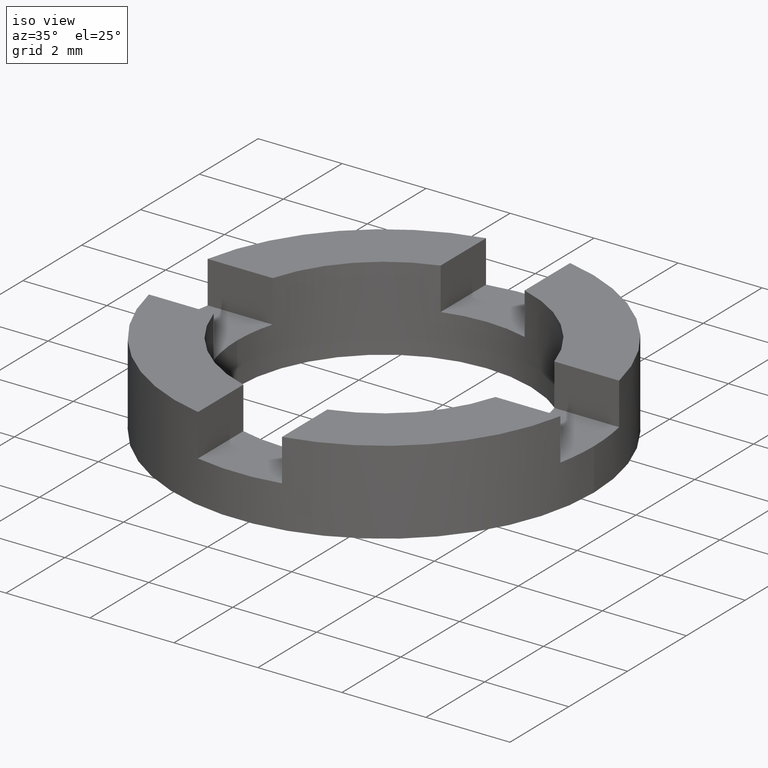
[diagram: clean part render]
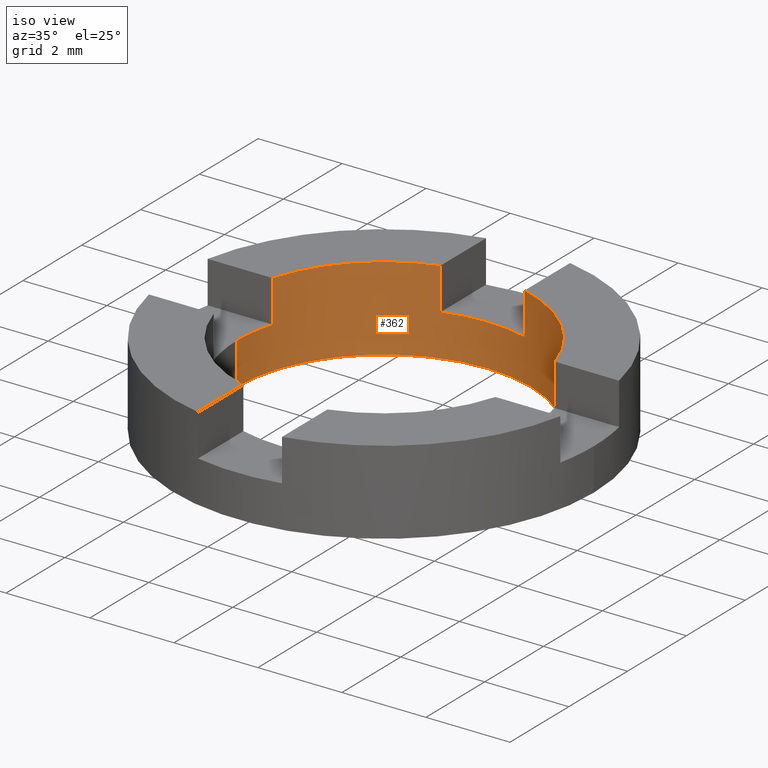
[diagram: same view with one face highlighted and labeled with its STEP entity id]
A machine part, iso view. The second image highlights one B-rep face of the part: STEP entity #362.
In plain terms, the highlighted cylindrical surface (partial cylindrical patch) has radius 3.5 mm, axis along (-0, -0, -1).
Its self-contained STEP definition (entity closure, byte-faithful):
#12 = EDGE_CURVE ( 'NONE', #44, #113, #588, .T. ) ;
#19 = VECTOR ( 'NONE', #26, 1000.000000000000000 ) ;
#20 = EDGE_CURVE ( 'NONE', #636, #141, #66, .T. ) ;
#25 = ORIENTED_EDGE ( 'NONE', *, *, #654, .F. ) ;
#26 = DIRECTION ( 'NONE',  ( -0.000000000000000000, -0.000000000000000000, -1.000000000000000000 ) ) ;
#42 = EDGE_CURVE ( 'NONE', #167, #532, #237, .T. ) ;
#44 = VERTEX_POINT ( 'NONE', #130 ) ;
#52 = LINE ( 'NONE', #468, #676 ) ;
#53 = VERTEX_POINT ( 'NONE', #478 ) ;
#58 = DIRECTION ( 'NONE',  ( -0.000000000000000000, -0.000000000000000000, -1.000000000000000000 ) ) ;
#66 = LINE ( 'NONE', #483, #536 ) ;
#73 = DIRECTION ( 'NONE',  ( 1.000000000000000000, 0.000000000000000000, 0.000000000000000000 ) ) ;
#78 = DIRECTION ( 'NONE',  ( 0.000000000000000000, 0.000000000000000000, 1.000000000000000000 ) ) ;
#90 = CARTESIAN_POINT ( 'NONE',  ( 0.000000000000000000, 0.000000000000000000, 2.000000000000000000 ) ) ;
#98 = EDGE_CURVE ( 'NONE', #532, #44, #305, .T. ) ;
#104 = CARTESIAN_POINT ( 'NONE',  ( 0.000000000000000000, 0.000000000000000000, 1.000000000000000000 ) ) ;
#112 = CARTESIAN_POINT ( 'NONE',  ( -3.354101966249774858, 0.9999999999996979083, 2.000000000000000000 ) ) ;
#113 = VERTEX_POINT ( 'NONE', #247 ) ;
#115 = DIRECTION ( 'NONE',  ( -0.000000000000000000, -0.000000000000000000, -1.000000000000000000 ) ) ;
#120 = AXIS2_PLACEMENT_3D ( 'NONE', #631, #78, #682 ) ;
#130 = CARTESIAN_POINT ( 'NONE',  ( 3.500000000000000000, 4.286263797015736595E-16, 1.000000000000000000 ) ) ;
#137 = CARTESIAN_POINT ( 'NONE',  ( 0.000000000000000000, 0.000000000000000000, 0.000000000000000000 ) ) ;
#139 = DIRECTION ( 'NONE',  ( -0.000000000000000000, -0.000000000000000000, -1.000000000000000000 ) ) ;
#141 = VERTEX_POINT ( 'NONE', #612 ) ;
#159 = AXIS2_PLACEMENT_3D ( 'NONE', #358, #297, #293 ) ;
#167 = VERTEX_POINT ( 'NONE', #720 ) ;
#172 = CIRCLE ( 'NONE', #554, 3.500000000000000000 ) ;
#175 = ORIENTED_EDGE ( 'NONE', *, *, #20, .F. ) ;
#178 = DIRECTION ( 'NONE',  ( 1.000000000000000000, 0.000000000000000000, 0.000000000000000000 ) ) ;
#179 = DIRECTION ( 'NONE',  ( 0.000000000000000000, 0.000000000000000000, 1.000000000000000000 ) ) ;
#181 = CARTESIAN_POINT ( 'NONE',  ( 0.000000000000000000, 0.000000000000000000, 2.000000000000000000 ) ) ;
#201 = CIRCLE ( 'NONE', #159, 3.500000000000000000 ) ;
#231 = DIRECTION ( 'NONE',  ( 1.000000000000000000, 0.000000000000000000, 0.000000000000000000 ) ) ;
#235 = EDGE_CURVE ( 'NONE', #623, #53, #201, .T. ) ;
#237 = LINE ( 'NONE', #428, #527 ) ;
#239 = LINE ( 'NONE', #404, #470 ) ;
#244 = DIRECTION ( 'NONE',  ( 0.000000000000000000, 0.000000000000000000, -1.000000000000000000 ) ) ;
#247 = CARTESIAN_POINT ( 'NONE',  ( 3.500000000000000000, 4.286263797015736595E-16, 0.000000000000000000 ) ) ;
#259 = AXIS2_PLACEMENT_3D ( 'NONE', #181, #770, #178 ) ;
#262 = ORIENTED_EDGE ( 'NONE', *, *, #12, .F. ) ;
#282 = CARTESIAN_POINT ( 'NONE',  ( 3.500000000000000000, 4.286263797015736595E-16, 2.000000000000000000 ) ) ;
#291 = ORIENTED_EDGE ( 'NONE', *, *, #646, .T. ) ;
#293 = DIRECTION ( 'NONE',  ( -1.000000000000000000, 0.000000000000000000, 0.000000000000000000 ) ) ;
#296 = CARTESIAN_POINT ( 'NONE',  ( 0.000000000000000000, 0.000000000000000000, 1.000000000000000000 ) ) ;
#297 = DIRECTION ( 'NONE',  ( 0.000000000000000000, -0.000000000000000000, -1.000000000000000000 ) ) ;
#305 = CIRCLE ( 'NONE', #459, 3.500000000000000000 ) ;
#319 = VERTEX_POINT ( 'NONE', #628 ) ;
#333 = CIRCLE ( 'NONE', #642, 3.500000000000000000 ) ;
#352 = ORIENTED_EDGE ( 'NONE', *, *, #464, .T. ) ;
#358 = CARTESIAN_POINT ( 'NONE',  ( 0.000000000000000000, 0.000000000000000000, 1.000000000000000000 ) ) ;
#362 = ADVANCED_FACE ( 'NONE', ( #618 ), #635, .F. ) ;
#368 = VECTOR ( 'NONE', #549, 1000.000000000000000 ) ;
#369 = CARTESIAN_POINT ( 'NONE',  ( -1.000000000000000000, 3.354101966249684708, 2.000000000000000000 ) ) ;
#404 = CARTESIAN_POINT ( 'NONE',  ( -3.354101966249774858, 0.9999999999996979083, 2.000000000000000000 ) ) ;
#405 = VERTEX_POINT ( 'NONE', #515 ) ;
#408 = DIRECTION ( 'NONE',  ( 0.000000000000000000, 0.000000000000000000, 1.000000000000000000 ) ) ;
#412 = ORIENTED_EDGE ( 'NONE', *, *, #761, .T. ) ;
#418 = CARTESIAN_POINT ( 'NONE',  ( 3.354101966249671385, 1.000000000000045297, 1.000000000000000000 ) ) ;
#428 = CARTESIAN_POINT ( 'NONE',  ( 3.354101966249671385, 1.000000000000045297, 2.000000000000000000 ) ) ;
#432 = EDGE_CURVE ( 'NONE', #53, #485, #239, .T. ) ;
#451 = AXIS2_PLACEMENT_3D ( 'NONE', #90, #139, #743 ) ;
#456 = EDGE_CURVE ( 'NONE', #644, #405, #52, .T. ) ;
#459 = AXIS2_PLACEMENT_3D ( 'NONE', #296, #244, #555 ) ;
#460 = CIRCLE ( 'NONE', #120, 3.500000000000000000 ) ;
#464 = EDGE_CURVE ( 'NONE', #636, #405, #333, .T. ) ;
#468 = CARTESIAN_POINT ( 'NONE',  ( -1.000000000000000000, 3.354101966249684708, 2.000000000000000000 ) ) ;
#470 = VECTOR ( 'NONE', #408, 1000.000000000000000 ) ;
#478 = CARTESIAN_POINT ( 'NONE',  ( -3.354101966249774858, 0.9999999999996979083, 1.000000000000000000 ) ) ;
#481 = EDGE_CURVE ( 'NONE', #167, #141, #520, .T. ) ;
#482 = DIRECTION ( 'NONE',  ( 0.000000000000000000, -0.000000000000000000, 1.000000000000000000 ) ) ;
#483 = CARTESIAN_POINT ( 'NONE',  ( 1.000000000000000000, 3.354101966249684708, 2.000000000000000000 ) ) ;
#485 = VERTEX_POINT ( 'NONE', #112 ) ;
#497 = CARTESIAN_POINT ( 'NONE',  ( 1.000000000000000000, 3.354101966249684708, 1.000000000000000000 ) ) ;
#502 = CARTESIAN_POINT ( 'NONE',  ( -3.500000000000000000, 0.000000000000000000, 1.000000000000000000 ) ) ;
#510 = EDGE_LOOP ( 'NONE', ( #262, #734, #752, #710, #175, #352, #683, #291, #556, #512, #412, #25 ) ) ;
#512 = ORIENTED_EDGE ( 'NONE', *, *, #235, .F. ) ;
#515 = CARTESIAN_POINT ( 'NONE',  ( -1.000000000000000000, 3.354101966249684708, 1.000000000000000000 ) ) ;
#520 = CIRCLE ( 'NONE', #259, 3.500000000000000000 ) ;
#527 = VECTOR ( 'NONE', #58, 1000.000000000000000 ) ;
#532 = VERTEX_POINT ( 'NONE', #418 ) ;
#536 = VECTOR ( 'NONE', #179, 1000.000000000000000 ) ;
#549 = DIRECTION ( 'NONE',  ( -0.000000000000000000, -0.000000000000000000, -1.000000000000000000 ) ) ;
#554 = AXIS2_PLACEMENT_3D ( 'NONE', #137, #741, #73 ) ;
#555 = DIRECTION ( 'NONE',  ( -1.000000000000000000, 0.000000000000000000, 0.000000000000000000 ) ) ;
#556 = ORIENTED_EDGE ( 'NONE', *, *, #432, .F. ) ;
#574 = LINE ( 'NONE', #638, #19 ) ;
#588 = LINE ( 'NONE', #282, #368 ) ;
#612 = CARTESIAN_POINT ( 'NONE',  ( 1.000000000000000000, 3.354101966249684708, 2.000000000000000000 ) ) ;
#618 = FACE_OUTER_BOUND ( 'NONE', #510, .T. ) ;
#623 = VERTEX_POINT ( 'NONE', #502 ) ;
#628 = CARTESIAN_POINT ( 'NONE',  ( -3.500000000000000000, 0.000000000000000000, 0.000000000000000000 ) ) ;
#631 = CARTESIAN_POINT ( 'NONE',  ( 0.000000000000000000, 0.000000000000000000, 2.000000000000000000 ) ) ;
#635 = CYLINDRICAL_SURFACE ( 'NONE', #451, 3.500000000000000000 ) ;
#636 = VERTEX_POINT ( 'NONE', #497 ) ;
#638 = CARTESIAN_POINT ( 'NONE',  ( -3.500000000000000000, 0.000000000000000000, 2.000000000000000000 ) ) ;
#642 = AXIS2_PLACEMENT_3D ( 'NONE', #104, #482, #231 ) ;
#644 = VERTEX_POINT ( 'NONE', #369 ) ;
#646 = EDGE_CURVE ( 'NONE', #644, #485, #460, .T. ) ;
#654 = EDGE_CURVE ( 'NONE', #113, #319, #172, .T. ) ;
#676 = VECTOR ( 'NONE', #115, 1000.000000000000000 ) ;
#682 = DIRECTION ( 'NONE',  ( 1.000000000000000000, 0.000000000000000000, 0.000000000000000000 ) ) ;
#683 = ORIENTED_EDGE ( 'NONE', *, *, #456, .F. ) ;
#710 = ORIENTED_EDGE ( 'NONE', *, *, #481, .T. ) ;
#720 = CARTESIAN_POINT ( 'NONE',  ( 3.354101966249671385, 1.000000000000045297, 2.000000000000000000 ) ) ;
#734 = ORIENTED_EDGE ( 'NONE', *, *, #98, .F. ) ;
#741 = DIRECTION ( 'NONE',  ( 0.000000000000000000, 0.000000000000000000, 1.000000000000000000 ) ) ;
#743 = DIRECTION ( 'NONE',  ( -1.000000000000000000, 0.000000000000000000, 0.000000000000000000 ) ) ;
#752 = ORIENTED_EDGE ( 'NONE', *, *, #42, .F. ) ;
#761 = EDGE_CURVE ( 'NONE', #623, #319, #574, .T. ) ;
#770 = DIRECTION ( 'NONE',  ( 0.000000000000000000, 0.000000000000000000, 1.000000000000000000 ) ) ;